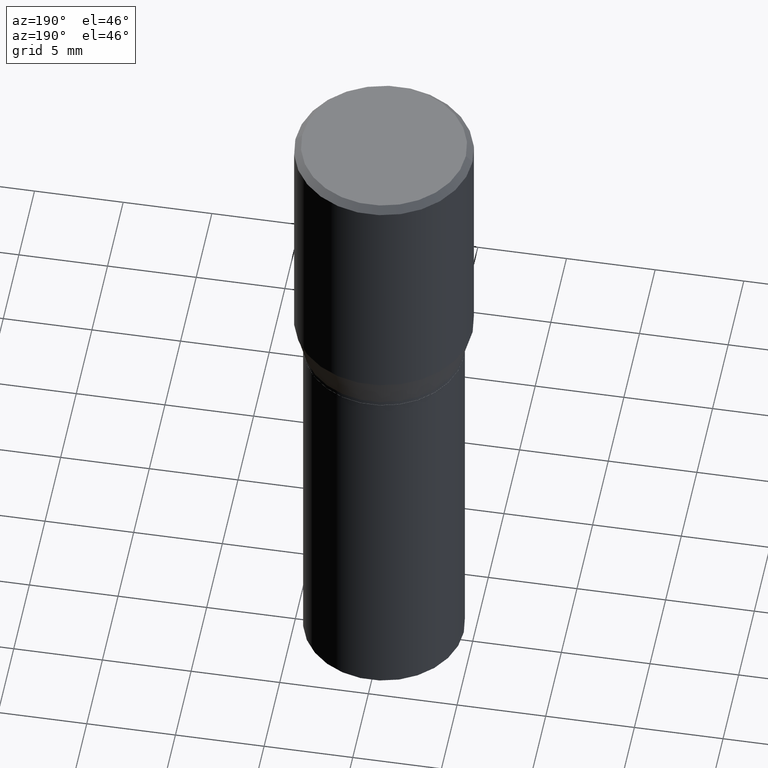
[diagram: clean part render]
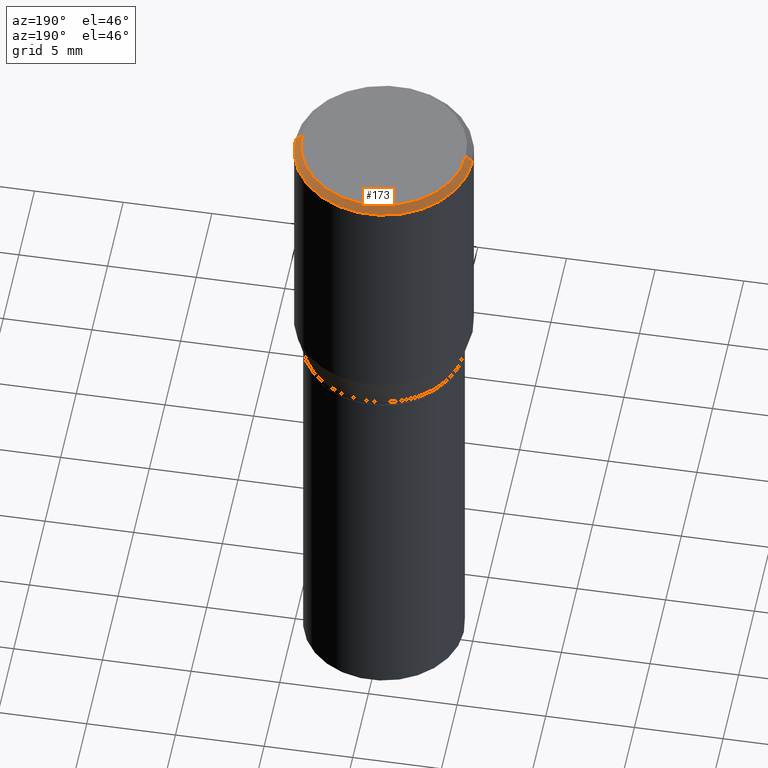
[diagram: same view with one face highlighted and labeled with its STEP entity id]
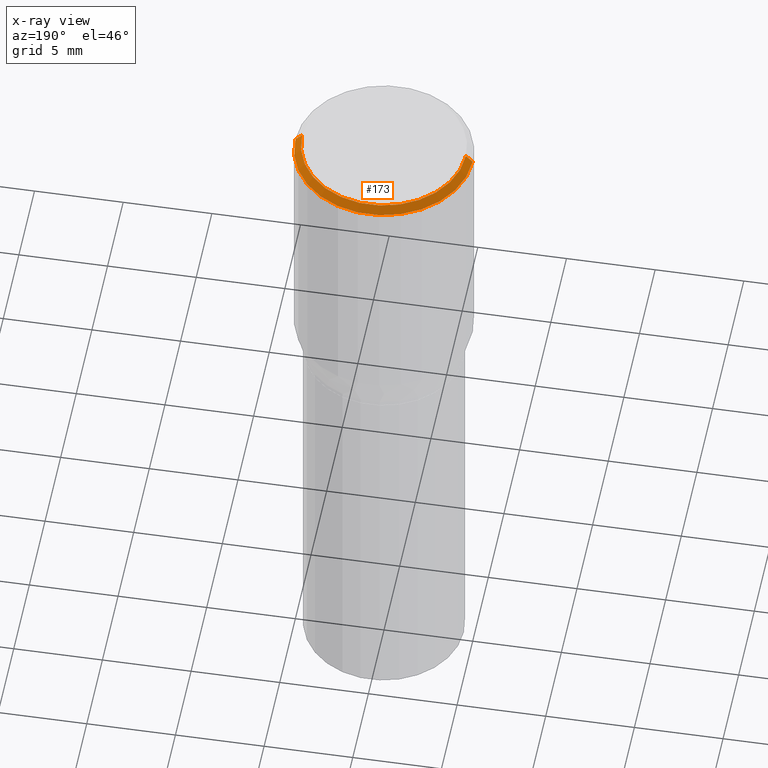
[diagram: x-ray of the same camera — body ghosted, the highlighted face saturated]
A machine part, auxiliary view. The second image highlights one B-rep face of the part: STEP entity #173.
The next image is the same camera in x-ray: the body ghosted, the highlighted face saturated — about 0% of this face is hidden behind the body in this view.
In plain terms, the highlighted conical surface has half-angle 45 deg.
Its self-contained STEP definition (entity closure, byte-faithful):
#1 = ORIENTED_EDGE ( 'NONE', *, *, #97, .F. ) ;
#2 = ORIENTED_EDGE ( 'NONE', *, *, #143, .T. ) ;
#6 = VECTOR ( 'NONE', #331, 39.37007874015748143 ) ;
#9 = VERTEX_POINT ( 'NONE', #292 ) ;
#18 = DIRECTION ( 'NONE',  ( -1.000000000000000000, 6.982962677686265922E-15, 0.000000000000000000 ) ) ;
#23 = DIRECTION ( 'NONE',  ( 1.000000000000000000, -6.982962677686265922E-15, 0.000000000000000000 ) ) ;
#38 = CONICAL_SURFACE ( 'NONE', #263, 0.1968500000000000250, 0.7853981633974488341 ) ;
#45 = FACE_OUTER_BOUND ( 'NONE', #418, .T. ) ;
#51 = VERTEX_POINT ( 'NONE', #56 ) ;
#53 = CARTESIAN_POINT ( 'NONE',  ( 1.582769352365941312E-46, -2.259775157835388046E-32, -6.472253288869456262E-18 ) ) ;
#56 = CARTESIAN_POINT ( 'NONE',  ( 0.1968500000000000250, -1.426968423185188885E-15, -0.01499999999999999944 ) ) ;
#82 = CARTESIAN_POINT ( 'NONE',  ( -0.1968500000000000250, 1.322223983019894529E-15, -0.01499999999999999944 ) ) ;
#97 = EDGE_CURVE ( 'NONE', #9, #237, #262, .T. ) ;
#115 = ORIENTED_EDGE ( 'NONE', *, *, #245, .T. ) ;
#128 = LINE ( 'NONE', #402, #6 ) ;
#143 = EDGE_CURVE ( 'NONE', #264, #51, #128, .T. ) ;
#165 = CIRCLE ( 'NONE', #408, 0.1818500000000000116 ) ;
#173 = ADVANCED_FACE ( 'NONE', ( #45 ), #38, .T. ) ;
#195 = CIRCLE ( 'NONE', #200, 0.1968500000000000250 ) ;
#200 = AXIS2_PLACEMENT_3D ( 'NONE', #211, #220, #23 ) ;
#202 = ORIENTED_EDGE ( 'NONE', *, *, #400, .F. ) ;
#211 = CARTESIAN_POINT ( 'NONE',  ( 3.668203209277705088E-31, -5.237222008264718399E-17, -0.01499999999999999944 ) ) ;
#220 = DIRECTION ( 'NONE',  ( -2.445468806185136597E-29, 3.491481338843145583E-15, 1.000000000000000000 ) ) ;
#232 = DIRECTION ( 'NONE',  ( -0.7071067811865479058, 2.468850131082261005E-15, -0.7071067811865471286 ) ) ;
#237 = VERTEX_POINT ( 'NONE', #379 ) ;
#245 = EDGE_CURVE ( 'NONE', #51, #237, #195, .T. ) ;
#262 = LINE ( 'NONE', #82, #308 ) ;
#263 = AXIS2_PLACEMENT_3D ( 'NONE', #368, #334, #18 ) ;
#264 = VERTEX_POINT ( 'NONE', #447 ) ;
#286 = DIRECTION ( 'NONE',  ( -2.445468806185136597E-29, 3.491481338843145583E-15, 1.000000000000000000 ) ) ;
#292 = CARTESIAN_POINT ( 'NONE',  ( -0.1818500000000000116, 1.296037872978570989E-15, -6.472253288878428014E-18 ) ) ;
#308 = VECTOR ( 'NONE', #232, 39.37007874015748143 ) ;
#331 = DIRECTION ( 'NONE',  ( 0.7071067811865479058, -7.319954787623257623E-15, -0.7071067811865471286 ) ) ;
#334 = DIRECTION ( 'NONE',  ( 2.445468806185136597E-29, -3.491481338843145583E-15, -1.000000000000000000 ) ) ;
#368 = CARTESIAN_POINT ( 'NONE',  ( 3.668203209277705088E-31, -5.237222008264718399E-17, -0.01499999999999999944 ) ) ;
#379 = CARTESIAN_POINT ( 'NONE',  ( -0.1968500000000000250, 4.116989612901891144E-16, -0.01499999999999999944 ) ) ;
#400 = EDGE_CURVE ( 'NONE', #264, #9, #165, .T. ) ;
#402 = CARTESIAN_POINT ( 'NONE',  ( 0.1968500000000000250, -1.402861250943973297E-15, -0.01499999999999999944 ) ) ;
#408 = AXIS2_PLACEMENT_3D ( 'NONE', #53, #286, #454 ) ;
#418 = EDGE_LOOP ( 'NONE', ( #202, #2, #115, #1 ) ) ;
#447 = CARTESIAN_POINT ( 'NONE',  ( 0.1818500000000000116, -1.325221405919363357E-15, -6.472253288860382051E-18 ) ) ;
#454 = DIRECTION ( 'NONE',  ( 1.000000000000000000, -6.982962677686266711E-15, 4.876336753188190607E-29 ) ) ;